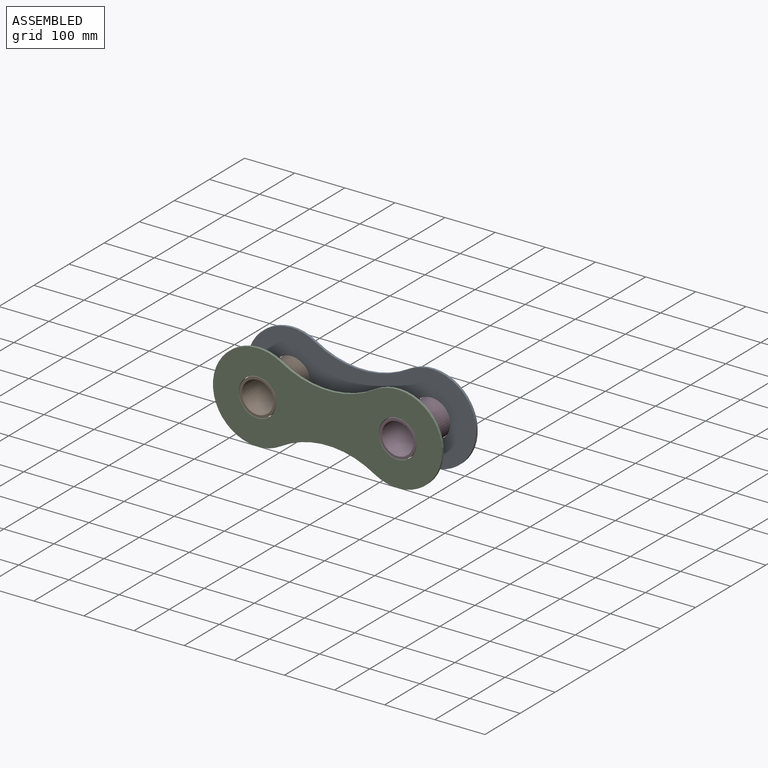
[diagram: assembled view]
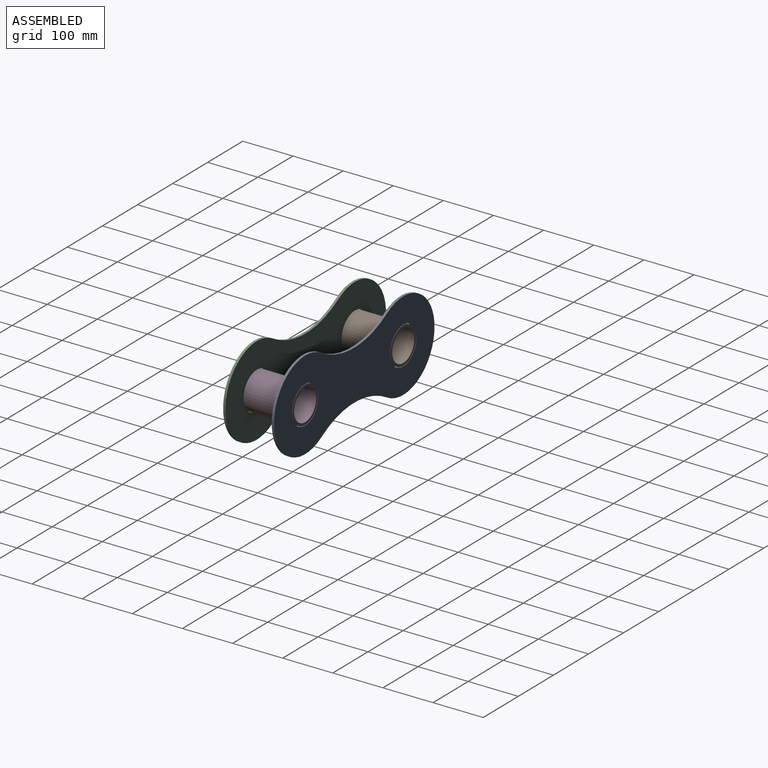
[diagram: assembled view, second angle]
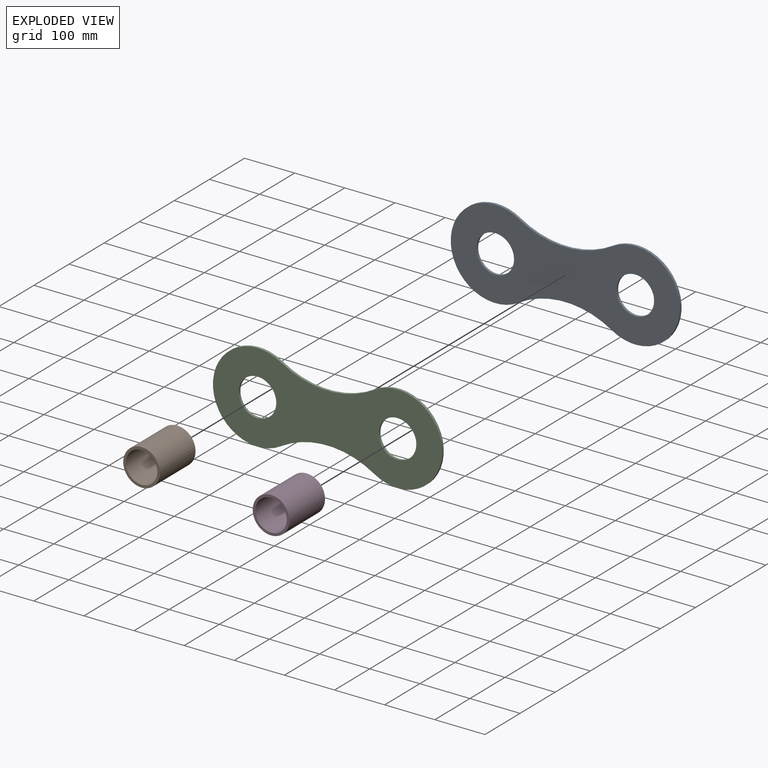
[diagram: exploded view]
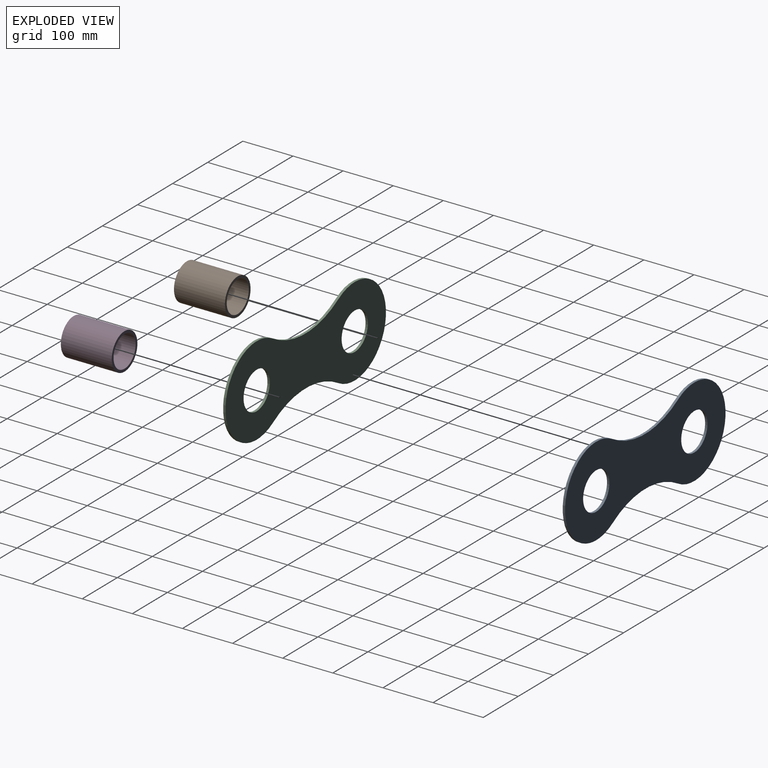
[diagram: exploded view, second angle]
ASSEMBLY  parts=4 mates=4
PART A: 8 faces, bbox 457.2x4.8x177.8 mm
  f0: cylinder r=177.8mm len=186.27mm, axis (0,-1,0), area 933.7mm2, adj f1,f3,f6,f7
  f1: cylinder r=88.9mm len=177.8mm, axis (0,-1,0), area 1796.9mm2, adj f0,f2,f6,f7
  f2: cylinder r=177.8mm len=186.27mm, axis (0,-1,0), area 933.7mm2, adj f1,f3,f6,f7
  f3: cylinder r=88.9mm len=177.8mm, axis (0,-1,0), area 1796.9mm2, adj f0,f2,f6,f7
  f4: cylinder r=37.46mm len=74.93mm, axis (0,-1,0), area 1121.1mm2, adj f6,f7
  f5: cylinder r=37.46mm len=74.93mm, axis (0,-1,0), area 1121.1mm2, adj f6,f7
  f6: plane 457.2x177.8mm, normal (0,1,0), area 53341.7mm2, adj f0,f1,f2,f3,f4,f5
  f7: plane 457.2x177.8mm, normal (0,-1,0), area 53341.7mm2, adj f0,f1,f2,f3,f4,f5
PART B: 4 faces, bbox 73.2x101.6x73.2 mm
  f0: cylinder r=31.37mm len=101.6mm, axis (0,1,0), area 20025.1mm2, adj f1,f2
  f1: plane 73.15x73.15mm, normal (0,-1,0), area 1111.5mm2, adj f0,f3
  f2: plane 73.15x73.15mm, normal (0,1,0), area 1111.5mm2, adj f0,f3
  f3: cylinder r=36.58mm len=101.6mm, axis (0,1,0), area 23349.1mm2, adj f1,f2
PART C: same geometry as A
PART D: same geometry as B
PLACE A t=(6.08,86.94,93.24)mm
PLACE B rot(axis=(0,1,0),4.9deg) t=(-133.62,-14.66,93.24)mm
PLACE C rot(axis=(0,1,0),0deg) t=(6.08,-9.89,93.24)mm
PLACE D t=(145.78,-14.66,93.24)mm
MATE revolute C.f4 <-> B.f0  axis (0,-1,0) through (-133.62,-14.66,93.24)mm
MATE revolute A.f5 <-> D.f0  axis (0,1,0) through (145.78,86.94,93.24)mm
MATE revolute C.f5 <-> D.f0  axis (0,-1,0) through (145.78,-14.66,93.24)mm
MATE revolute A.f4 <-> B.f0  axis (0,1,0) through (-133.62,86.94,93.24)mm
